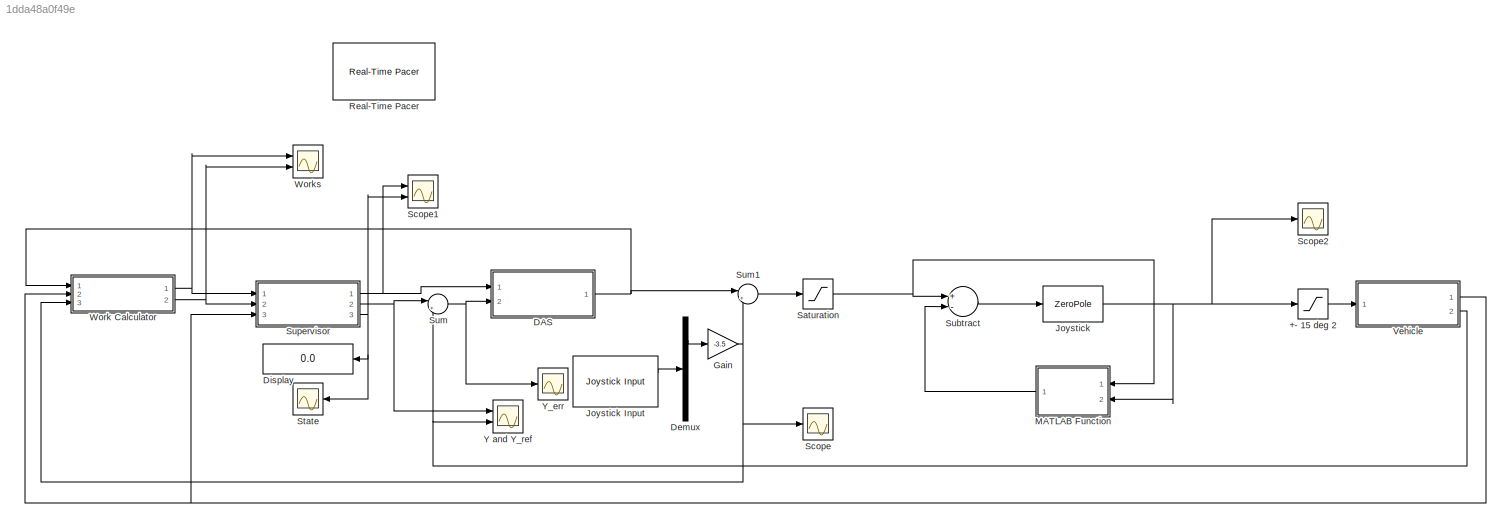
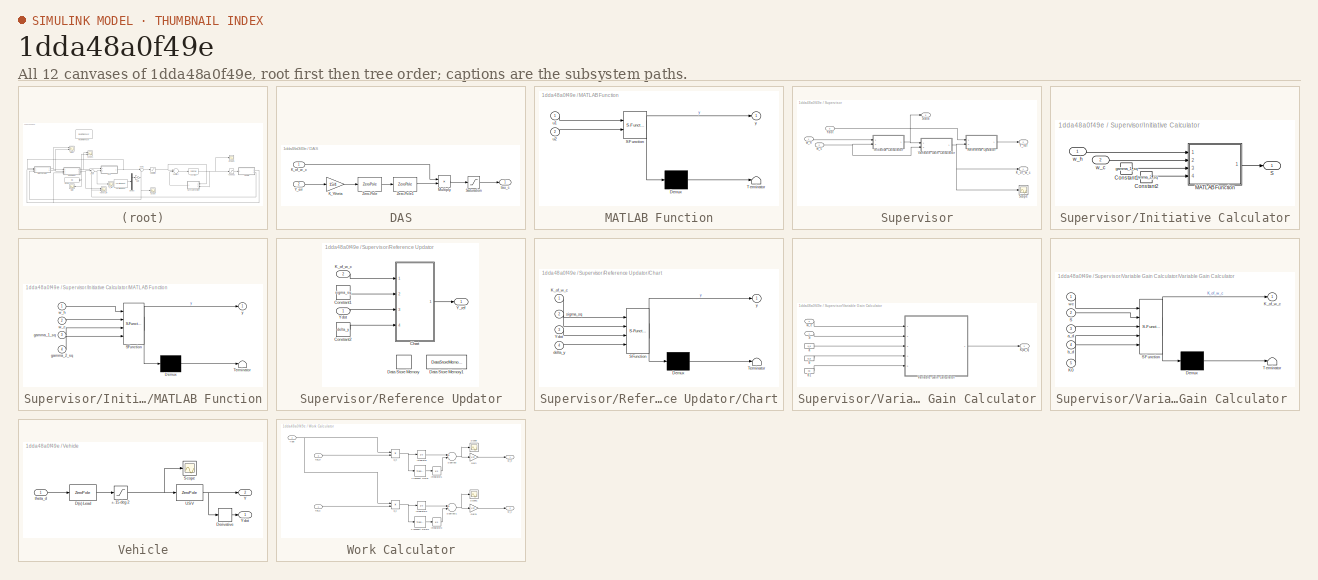
[diagram: thumbnail index - all 12 canvases of the model, root first then tree order]
MODEL slx_1dda48a0f49e
KIND model
CONFIG AbsTol = auto
CONFIG EnableMultiTasking = off
CONFIG FixedStep = auto
CONFIG InitFcn = RLDesignJoystick;\nY_ref=0;\nlast_switch_time=0;
CONFIG MaxStep = auto
CONFIG MinStep = auto
CONFIG RelTol = 1e-3
CONFIG SampleTimeConstraint = Unconstrained
CONFIG Solver = VariableStepAuto
CONFIG SolverName = VariableStepAuto
CONFIG StartTime = 0.0
CONFIG StopTime = 200
BLOCK [Saturate] +- 15 deg 2
  InputPortMap = u0
  LowerLimit = -pi/6
  Ports = [1, 1]
  UpperLimit = pi/6
BLOCK [SubSystem] DAS
  Ports = [2, 1]
  RequestExecContextInheritance = off
BLOCK [Gain] DAS/K_Ytheta
  Gain = 15/4
  OutDataTypeStr = Inherit: Inherit via internal rule
  ParamDataTypeStr = Inherit: Inherit via internal rule
  SaturateOnIntegerOverflow = off
BLOCK [Inport] DAS/K_of_w_c 
  IconDisplay = Port number
BLOCK [Product] DAS/Multiply
  InputSameDT = off
  OutDataTypeStr = Inherit: Inherit via internal rule
  Ports = [2, 1]
  RndMeth = Floor
  SaturateOnIntegerOverflow = off
BLOCK [Saturate] DAS/Saturation
  InputPortMap = u0
  LowerLimit = -3.5
  Ports = [1, 1]
  UpperLimit = 3.5
BLOCK [Inport] DAS/Y_err
  IconDisplay = Port number
  Port = 2
BLOCK [ZeroPole] DAS/Zero-Pole
  Gain = [K0]
  Poles = [-a]
  Zeros = [-b]
BLOCK [ZeroPole] DAS/Zero-Pole1
  Gain = [K1]
  Poles = [-a1]
  Zeros = [-b1]
BLOCK [Outport] DAS/tau_c
  IconDisplay = Port number
BLOCK [Demux] Demux
  DisplayOption = bar
  Outputs = 8
  Ports = [1, 8]
BLOCK [Display] Display
  Decimation = 1
  Ports = [1]
BLOCK [Gain] Gain
  Gain = -3.5
  OutDataTypeStr = Inherit: Inherit via internal rule
  ParamDataTypeStr = Inherit: Inherit via internal rule
  SaturateOnIntegerOverflow = off
BLOCK [ZeroPole] Joystick
  Gain = [I]
  Poles = [0 -bb/I]
  Zeros = []
BLOCK [Reference] Joystick Input  REF=vrlib/Joystick Input
  Ports = [0, 2]
  SourceBlock = vrlib/Joystick Input
  SourceProductBaseCode = VR
  SourceProductName = Simulink 3D Animation
  SourceType = Joystick Input
BLOCK [SubSystem] MATLAB Function
  ErrorFcn = Stateflow.Translate.translate
  PermitHierarchicalResolution = ExplicitOnly
  Ports = [2, 1]
  RequestExecContextInheritance = off
  SFBlockType = MATLAB Function
  TreatAsAtomicUnit = on
BLOCK [Demux] MATLAB Function/ Demux 
  Outputs = 1
  Ports = [1, 1]
BLOCK [S-Function] MATLAB Function/ SFunction 
  EnableBusSupport = on
  FunctionName = sf_sfun
  PortCounts = [2 2]
  Ports = [2, 2]
  SFcnIsStateOwnerBlock = off
  SFunctionDeploymentMode = off
  Tag = Stateflow S-Function sharedControlModelBased 4
BLOCK [Terminator] MATLAB Function/ Terminator 
BLOCK [Inport] MATLAB Function/u1
  IconDisplay = Port number
BLOCK [Inport] MATLAB Function/u2
  IconDisplay = Port number
  Port = 2
BLOCK [Outport] MATLAB Function/y
  IconDisplay = Port number
BLOCK [Reference] Real-Time Pacer  REF=realtime_pacer_lib/Real-Time Pacer
  Ports = []
  SourceBlock = realtime_pacer_lib/Real-Time Pacer
  SourceType = RealTime_Pacer
BLOCK [Saturate] Saturation
  InputPortMap = u0
  LowerLimit = -3.5
  Ports = [1, 1]
  UpperLimit = 3.5
BLOCK [Scope] Scope
  Floating = off
  NumInputPorts = 1
  Ports = [1]
  ScopeSpecificationString = Simulink.scopes.TimeScopeBlockCfg('CurrentConfiguration', extmgr.ConfigurationSet(extmgr.Configuration('Core','General UI',true),extmgr.Configuration('Core','Source UI',true),extmgr.Configuration('Sources','WiredSimulink',true,'DataLoggingVariableName','ScopeData1'),extmgr.Configuration('Visuals','Time Domain',true,'SerializedDisplays',{struct('MinYLimReal','-3.32862','MaxYLimReal','0.36985','YLab...<+1417ch>
BLOCK [Scope] Scope1
  Floating = off
  NumInputPorts = 2
  Ports = [2]
  ScopeSpecificationString = Simulink.scopes.TimeScopeBlockCfg('CurrentConfiguration', extmgr.ConfigurationSet(extmgr.Configuration('Core','General UI',true),extmgr.Configuration('Core','Source UI',true),extmgr.Configuration('Sources','WiredSimulink',true,'DataLoggingVariableName','ScopeData1'),extmgr.Configuration('Visuals','Time Domain',true,'SerializedDisplays',{struct('MinYLimReal','-0.74913','MaxYLimReal','6.7499','YLabe...<+1458ch>
BLOCK [Scope] Scope2
  Floating = off
  NumInputPorts = 1
  Ports = [1]
  ScopeSpecificationString = Simulink.scopes.TimeScopeBlockCfg('CurrentConfiguration', extmgr.ConfigurationSet(extmgr.Configuration('Core','General UI',true),extmgr.Configuration('Core','Source UI',true),extmgr.Configuration('Sources','WiredSimulink',true,'DataLoggingVariableName','ScopeData3'),extmgr.Configuration('Visuals','Time Domain',true,'SerializedDisplays',{struct('MinYLimReal','-6.58632','MaxYLimReal','8.7266','YLabe...<+1415ch>
BLOCK [Scope] State
  Floating = off
  NumInputPorts = 1
  Ports = [1]
  ScopeSpecificationString = Simulink.scopes.TimeScopeBlockCfg('CurrentConfiguration', extmgr.ConfigurationSet(extmgr.Configuration('Core','General UI',true),extmgr.Configuration('Core','Source UI',true),extmgr.Configuration('Sources','WiredSimulink',true,'DataLoggingVariableName','ScopeData2'),extmgr.Configuration('Visuals','Time Domain',true,'SerializedDisplays',{struct('MinYLimReal','0.875','MaxYLimReal','2.125','YLabelRea...<+1382ch>
BLOCK [Sum] Subtract
  InputSameDT = off
  Inputs = +-
  OutDataTypeStr = Inherit: Inherit via internal rule
  Ports = [2, 1]
  SaturateOnIntegerOverflow = off
BLOCK [Sum] Sum
  IconShape = round
  InputSameDT = off
  Inputs = |+-
  OutDataTypeStr = Inherit: Inherit via internal rule
  Ports = [2, 1]
  SaturateOnIntegerOverflow = off
BLOCK [Sum] Sum1
  IconShape = round
  InputSameDT = off
  Inputs = |++
  OutDataTypeStr = Inherit: Inherit via internal rule
  Ports = [2, 1]
  SaturateOnIntegerOverflow = off
BLOCK [SubSystem] Supervisor
  Ports = [3, 3]
  RequestExecContextInheritance = off
BLOCK [SubSystem] Supervisor/Initiative Calculator
  Ports = [2, 1]
  RequestExecContextInheritance = off
BLOCK [Constant] Supervisor/Initiative Calculator/Constant1
  Value = gamma_1_sq
BLOCK [Constant] Supervisor/Initiative Calculator/Constant2
  Value = gamma_2_sq
BLOCK [SubSystem] Supervisor/Initiative Calculator/MATLAB Function
  ErrorFcn = Stateflow.Translate.translate
  PermitHierarchicalResolution = ExplicitOnly
  Ports = [4, 1]
  RequestExecContextInheritance = off
  SFBlockType = MATLAB Function
  TreatAsAtomicUnit = on
BLOCK [Demux] Supervisor/Initiative Calculator/MATLAB Function/ Demux 
  Outputs = 1
  Ports = [1, 1]
BLOCK [S-Function] Supervisor/Initiative Calculator/MATLAB Function/ SFunction 
  EnableBusSupport = on
  FunctionName = sf_sfun
  PortCounts = [4 2]
  Ports = [4, 2]
  SFcnIsStateOwnerBlock = off
  SFunctionDeploymentMode = off
  Tag = Stateflow S-Function sharedControlModelBased 2
BLOCK [Terminator] Supervisor/Initiative Calculator/MATLAB Function/ Terminator 
BLOCK [Inport] Supervisor/Initiative Calculator/MATLAB Function/gamma_1_sq
  IconDisplay = Port number
  Port = 3
BLOCK [Inport] Supervisor/Initiative Calculator/MATLAB Function/gamma_2_sq
  IconDisplay = Port number
  Port = 4
BLOCK [Inport] Supervisor/Initiative Calculator/MATLAB Function/w_c
  IconDisplay = Port number
  Port = 2
BLOCK [Inport] Supervisor/Initiative Calculator/MATLAB Function/w_h
  IconDisplay = Port number
BLOCK [Outport] Supervisor/Initiative Calculator/MATLAB Function/y
  IconDisplay = Port number
BLOCK [Outport] Supervisor/Initiative Calculator/S
  IconDisplay = Port number
BLOCK [Inport] Supervisor/Initiative Calculator/w_c 
  IconDisplay = Port number
  Port = 2
BLOCK [Inport] Supervisor/Initiative Calculator/w_h
  IconDisplay = Port number
BLOCK [Outport] Supervisor/K_of_w_c
  IconDisplay = Port number
BLOCK [SubSystem] Supervisor/Reference Updator
  Ports = [2, 1]
  RequestExecContextInheritance = off
BLOCK [SubSystem] Supervisor/Reference Updator/Chart
  ErrorFcn = Stateflow.Translate.translate
  PermitHierarchicalResolution = ExplicitOnly
  Ports = [4, 1]
  RequestExecContextInheritance = off
  SFBlockType = Chart
  TreatAsAtomicUnit = on
BLOCK [Demux] Supervisor/Reference Updator/Chart/ Demux 
  Outputs = 1
  Ports = [1, 1]
BLOCK [S-Function] Supervisor/Reference Updator/Chart/ SFunction 
  EnableBusSupport = on
  FunctionName = sf_sfun
  PortCounts = [4 2]
  Ports = [4, 2]
  SFcnIsStateOwnerBlock = off
  SFunctionDeploymentMode = off
  Tag = Stateflow S-Function sharedControlModelBased 1
BLOCK [Terminator] Supervisor/Reference Updator/Chart/ Terminator 
BLOCK [Inport] Supervisor/Reference Updator/Chart/K_of_w_c
  IconDisplay = Port number
BLOCK [Inport] Supervisor/Reference Updator/Chart/Ydot
  IconDisplay = Port number
  Port = 3
BLOCK [Inport] Supervisor/Reference Updator/Chart/delta_y
  IconDisplay = Port number
  Port = 4
BLOCK [Inport] Supervisor/Reference Updator/Chart/sigma_sq
  IconDisplay = Port number
  Port = 2
BLOCK [Outport] Supervisor/Reference Updator/Chart/y
  IconDisplay = Port number
BLOCK [Constant] Supervisor/Reference Updator/Constant1
  Value = sigma_sq
BLOCK [Constant] Supervisor/Reference Updator/Constant2
  Value = delta_y
BLOCK [DataStoreMemory] Supervisor/Reference Updator/Data Store Memory
  DataStoreName = Y_ref
  OutDataTypeStr = int16
  ReadBeforeWriteMsg = warning
  ShowAdditionalParam = off
  SignalType = real
  WriteAfterReadMsg = warning
  WriteAfterWriteMsg = warning
BLOCK [DataStoreMemory] Supervisor/Reference Updator/Data Store Memory1
  DataStoreName = last_switch_time
  OutDataTypeStr = double
  ReadBeforeWriteMsg = warning
  ShowAdditionalParam = off
  SignalType = real
  WriteAfterReadMsg = warning
  WriteAfterWriteMsg = warning
BLOCK [Inport] Supervisor/Reference Updator/K_of_w_c
  IconDisplay = Port number
  Port = 2
BLOCK [Outport] Supervisor/Reference Updator/Y_ref
  IconDisplay = Port number
BLOCK [Inport] Supervisor/Reference Updator/Ydot
  IconDisplay = Port number
BLOCK [Scope] Supervisor/Scope
  Floating = off
  NumInputPorts = 1
  Ports = [1]
  ScopeSpecificationString = Simulink.scopes.TimeScopeBlockCfg('CurrentConfiguration', extmgr.ConfigurationSet(extmgr.Configuration('Core','General UI',true),extmgr.Configuration('Core','Source UI',true),extmgr.Configuration('Sources','WiredSimulink',true,'DataLoggingVariableName','ScopeData1'),extmgr.Configuration('Visuals','Time Domain',true,'SerializedDisplays',{struct('MinYLimReal','-0.05029','MaxYLimReal','0.56114','YLab...<+1431ch>
BLOCK [Outport] Supervisor/State
  IconDisplay = Port number
  Port = 3
BLOCK [SubSystem] Supervisor/Variable Gain Calculator
  Ports = [2, 1]
  RequestExecContextInheritance = off
BLOCK [Outport] Supervisor/Variable Gain Calculator/K(w_c)
  IconDisplay = Port number
BLOCK [Inport] Supervisor/Variable Gain Calculator/S
  IconDisplay = Port number
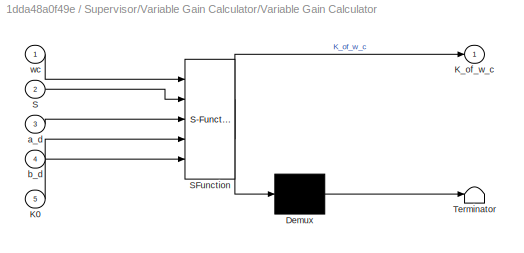
BLOCK [SubSystem] Supervisor/Variable Gain Calculator/Variable Gain Calculator 
  ErrorFcn = Stateflow.Translate.translate
  PermitHierarchicalResolution = ExplicitOnly
  Ports = [5, 1]
  RequestExecContextInheritance = off
  SFBlockType = MATLAB Function
  TreatAsAtomicUnit = on
BLOCK [Demux] Supervisor/Variable Gain Calculator/Variable Gain Calculator / Demux 
  Outputs = 1
  Ports = [1, 1]
BLOCK [S-Function] Supervisor/Variable Gain Calculator/Variable Gain Calculator / SFunction 
  EnableBusSupport = on
  FunctionName = sf_sfun
  PortCounts = [5 2]
  Ports = [5, 2]
  SFcnIsStateOwnerBlock = off
  SFunctionDeploymentMode = off
  Tag = Stateflow S-Function sharedControlModelBased 3
BLOCK [Terminator] Supervisor/Variable Gain Calculator/Variable Gain Calculator / Terminator 
BLOCK [Inport] Supervisor/Variable Gain Calculator/Variable Gain Calculator /K0
  IconDisplay = Port number
  Port = 5
BLOCK [Outport] Supervisor/Variable Gain Calculator/Variable Gain Calculator /K_of_w_c
  IconDisplay = Port number
BLOCK [Inport] Supervisor/Variable Gain Calculator/Variable Gain Calculator /S
  IconDisplay = Port number
  Port = 2
BLOCK [Inport] Supervisor/Variable Gain Calculator/Variable Gain Calculator /a_d
  IconDisplay = Port number
  Port = 3
BLOCK [Inport] Supervisor/Variable Gain Calculator/Variable Gain Calculator /b_d
  IconDisplay = Port number
  Port = 4
BLOCK [Inport] Supervisor/Variable Gain Calculator/Variable Gain Calculator /wc
  IconDisplay = Port number
BLOCK [Constant] Supervisor/Variable Gain Calculator/a
  Value = a_d
BLOCK [Constant] Supervisor/Variable Gain Calculator/b
  Value = b_d
BLOCK [Constant] Supervisor/Variable Gain Calculator/b1
  Value = K3
BLOCK [Inport] Supervisor/Variable Gain Calculator/w_c
  IconDisplay = Port number
  Port = 2
BLOCK [Outport] Supervisor/Y_ref
  IconDisplay = Port number
  Port = 2
BLOCK [Inport] Supervisor/Ydot
  IconDisplay = Port number
  Port = 3
BLOCK [Inport] Supervisor/w_c
  IconDisplay = Port number
  Port = 2
BLOCK [Inport] Supervisor/w_h
  IconDisplay = Port number
BLOCK [SubSystem] Vehicle
  Ports = [1, 2]
  RequestExecContextInheritance = off
BLOCK [Saturate] Vehicle/+- 15 deg 2
  InputPortMap = u0
  LowerLimit = -pi/6
  Ports = [1, 1]
  UpperLimit = pi/6
BLOCK [ZeroPole] Vehicle/D(s) Lead
  Gain = [K2]
  Poles = [-a2]
  Zeros = [-b2]
BLOCK [Derivative] Vehicle/Derivative
BLOCK [Scope] Vehicle/Scope
  Floating = off
  NumInputPorts = 1
  Ports = [1]
  ScopeSpecificationString = Simulink.scopes.TimeScopeBlockCfg('CurrentConfiguration', extmgr.ConfigurationSet(extmgr.Configuration('Core','General UI',true),extmgr.Configuration('Core','Source UI',true),extmgr.Configuration('Sources','WiredSimulink',true,'DataLoggingVariableName','ScopeData2'),extmgr.Configuration('Visuals','Time Domain',true,'SerializedDisplays',{struct('MinYLimReal','-0.6545','MaxYLimReal','0.6545','YLabel...<+1419ch>
BLOCK [ZeroPole] Vehicle/USV
  Gain = [2]
  Poles = [0 0 -3]
  Zeros = []
BLOCK [Outport] Vehicle/Y 
  IconDisplay = Port number
  Port = 2
BLOCK [Outport] Vehicle/Ydot
  IconDisplay = Port number
BLOCK [Inport] Vehicle/theta_d
  IconDisplay = Port number
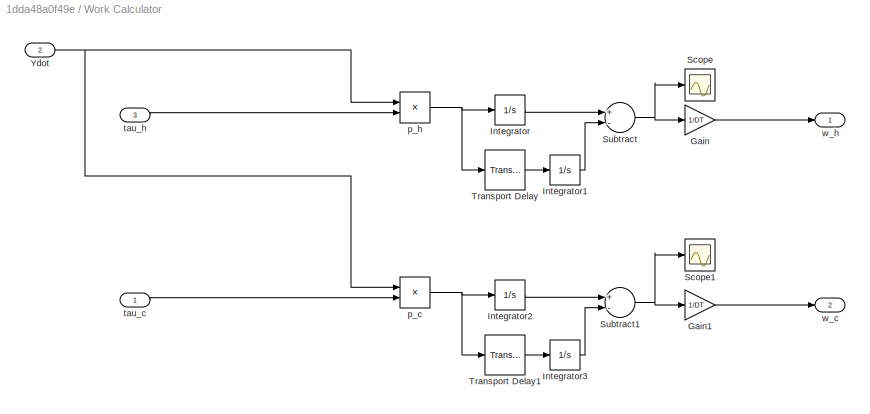
BLOCK [SubSystem] Work Calculator
  Ports = [3, 2]
  RequestExecContextInheritance = off
BLOCK [Gain] Work Calculator/Gain
  Gain = 1/DT
  OutDataTypeStr = Inherit: Inherit via internal rule
  ParamDataTypeStr = Inherit: Inherit via internal rule
  SaturateOnIntegerOverflow = off
BLOCK [Gain] Work Calculator/Gain1
  Gain = 1/DT
  OutDataTypeStr = Inherit: Inherit via internal rule
  ParamDataTypeStr = Inherit: Inherit via internal rule
  SaturateOnIntegerOverflow = off
BLOCK [Integrator] Work Calculator/Integrator
  Ports = [1, 1]
BLOCK [Integrator] Work Calculator/Integrator1
  Ports = [1, 1]
BLOCK [Integrator] Work Calculator/Integrator2
  Ports = [1, 1]
BLOCK [Integrator] Work Calculator/Integrator3
  Ports = [1, 1]
BLOCK [Scope] Work Calculator/Scope
  Floating = off
  NumInputPorts = 1
  Ports = [1]
  ScopeSpecificationString = Simulink.scopes.TimeScopeBlockCfg('CurrentConfiguration', extmgr.ConfigurationSet(extmgr.Configuration('Core','General UI',true),extmgr.Configuration('Core','Source UI',true),extmgr.Configuration('Sources','WiredSimulink',true,'DataLoggingVariableName','ScopeData2'),extmgr.Configuration('Visuals','Time Domain',true,'SerializedDisplays',{struct('MinYLimReal','-1.00000','MaxYLimReal','1.00000','YLab...<+1395ch>
BLOCK [Scope] Work Calculator/Scope1
  Floating = off
  NumInputPorts = 1
  Ports = [1]
  ScopeSpecificationString = Simulink.scopes.TimeScopeBlockCfg('CurrentConfiguration', extmgr.ConfigurationSet(extmgr.Configuration('Core','General UI',true),extmgr.Configuration('Core','Source UI',true),extmgr.Configuration('Sources','WiredSimulink',true,'DataLoggingVariableName','ScopeData3'),extmgr.Configuration('Visuals','Time Domain',true,'SerializedDisplays',{struct('MinYLimReal','-0.07558','MaxYLimReal','0.0084','YLabe...<+1396ch>
BLOCK [Sum] Work Calculator/Subtract
  InputSameDT = off
  Inputs = +-
  OutDataTypeStr = Inherit: Inherit via internal rule
  Ports = [2, 1]
  SaturateOnIntegerOverflow = off
BLOCK [Sum] Work Calculator/Subtract1
  InputSameDT = off
  Inputs = +-
  OutDataTypeStr = Inherit: Inherit via internal rule
  Ports = [2, 1]
  SaturateOnIntegerOverflow = off
BLOCK [TransportDelay] Work Calculator/Transport Delay
  DelayTime = DT
  Ports = [1, 1]
BLOCK [TransportDelay] Work Calculator/Transport Delay1
  DelayTime = DT
  Ports = [1, 1]
BLOCK [Inport] Work Calculator/Ydot
  IconDisplay = Port number
  Port = 2
BLOCK [Product] Work Calculator/p_c
  InputSameDT = off
  OutDataTypeStr = Inherit: Inherit via internal rule
  Ports = [2, 1]
  RndMeth = Floor
  SaturateOnIntegerOverflow = off
BLOCK [Product] Work Calculator/p_h
  InputSameDT = off
  OutDataTypeStr = Inherit: Inherit via internal rule
  Ports = [2, 1]
  RndMeth = Floor
  SaturateOnIntegerOverflow = off
BLOCK [Inport] Work Calculator/tau_c
  IconDisplay = Port number
BLOCK [Inport] Work Calculator/tau_h
  IconDisplay = Port number
  Port = 3
BLOCK [Outport] Work Calculator/w_c
  IconDisplay = Port number
  Port = 2
BLOCK [Outport] Work Calculator/w_h
  IconDisplay = Port number
BLOCK [Scope] Works
  Floating = off
  NumInputPorts = 2
  Ports = [2]
  ScopeSpecificationString = Simulink.scopes.TimeScopeBlockCfg('CurrentConfiguration', extmgr.ConfigurationSet(extmgr.Configuration('Core','General UI',true),extmgr.Configuration('Core','Source UI',true),extmgr.Configuration('Sources','WiredSimulink',true,'DataLoggingVariableName','ScopeData3'),extmgr.Configuration('Visuals','Time Domain',true,'SerializedDisplays',{struct('MinYLimReal','-0.08033','MaxYLimReal','0.03879','YLab...<+1385ch>
BLOCK [Scope] Y and Y_ref
  Floating = off
  NumInputPorts = 2
  Ports = [2]
  ScopeSpecificationString = Simulink.scopes.TimeScopeBlockCfg('CurrentConfiguration', extmgr.ConfigurationSet(extmgr.Configuration('Core','General UI',true),extmgr.Configuration('Core','Source UI',true),extmgr.Configuration('Sources','WiredSimulink',true,'DataLoggingVariableName','ScopeData4'),extmgr.Configuration('Visuals','Time Domain',true,'SerializedDisplays',{struct('MinYLimReal','-120.43905','MaxYLimReal','102.59176','...<+1512ch>
BLOCK [Scope] Y_err
  Floating = off
  NumInputPorts = 1
  Ports = [1]
  ScopeSpecificationString = Simulink.scopes.TimeScopeBlockCfg('CurrentConfiguration', extmgr.ConfigurationSet(extmgr.Configuration('Core','General UI',true),extmgr.Configuration('Core','Source UI',true),extmgr.Configuration('Sources','WiredSimulink',true,'DataLoggingVariableName','ScopeData5'),extmgr.Configuration('Visuals','Time Domain',true,'SerializedDisplays',{struct('MinYLimReal','-12.89901','MaxYLimReal','75.44183','YL...<+1392ch>
LINE +- 15 deg 2:1 -> Vehicle:1
LINE DAS/K_Ytheta:1 -> DAS/Zero-Pole:1
LINE DAS/K_of_w_c :1 -> DAS/Multiply:1
LINE DAS/Multiply:1 -> DAS/Saturation:1
LINE DAS/Saturation:1 -> DAS/tau_c:1
LINE DAS/Y_err:1 -> DAS/K_Ytheta:1
LINE DAS/Zero-Pole1:1 -> DAS/Multiply:2
LINE DAS/Zero-Pole:1 -> DAS/Zero-Pole1:1
NET DAS:1 -> Sum1:1, Work Calculator:1
LINE Demux:2 -> Gain:1
NET Gain:1 -> Scope:1, Sum1:2, Work Calculator:3
LINE Joystick Input:1 -> Demux:1
NET Joystick:1 -> +- 15 deg 2:1, MATLAB Function:2, Scope2:1
LINE MATLAB Function:1 -> Subtract:2
NET Saturation:1 -> MATLAB Function:1, Subtract:1
LINE Subtract:1 -> Joystick:1
LINE Sum1:1 -> Saturation:1
NET Sum:1 -> DAS:2, Y_err:1
LINE Supervisor/Initiative Calculator/Constant1:1 -> Supervisor/Initiative Calculator/MATLAB Function:3
LINE Supervisor/Initiative Calculator/Constant2:1 -> Supervisor/Initiative Calculator/MATLAB Function:4
LINE Supervisor/Initiative Calculator/MATLAB Function:1 -> Supervisor/Initiative Calculator/S:1
LINE Supervisor/Initiative Calculator/w_c :1 -> Supervisor/Initiative Calculator/MATLAB Function:2
LINE Supervisor/Initiative Calculator/w_h:1 -> Supervisor/Initiative Calculator/MATLAB Function:1
NET Supervisor/Initiative Calculator:1 -> Supervisor/State:1, Supervisor/Variable Gain Calculator:1
LINE Supervisor/Reference Updator/Chart:1 -> Supervisor/Reference Updator/Y_ref:1
LINE Supervisor/Reference Updator/Constant1:1 -> Supervisor/Reference Updator/Chart:2
LINE Supervisor/Reference Updator/Constant2:1 -> Supervisor/Reference Updator/Chart:4
LINE Supervisor/Reference Updator/K_of_w_c:1 -> Supervisor/Reference Updator/Chart:1
LINE Supervisor/Reference Updator/Ydot:1 -> Supervisor/Reference Updator/Chart:3
LINE Supervisor/Reference Updator:1 -> Supervisor/Y_ref:1
LINE Supervisor/Variable Gain Calculator/S:1 -> Supervisor/Variable Gain Calculator/Variable Gain Calculator :2
LINE Supervisor/Variable Gain Calculator/Variable Gain Calculator :1 -> Supervisor/Variable Gain Calculator/K(w_c):1
LINE Supervisor/Variable Gain Calculator/a:1 -> Supervisor/Variable Gain Calculator/Variable Gain Calculator :3
LINE Supervisor/Variable Gain Calculator/b1:1 -> Supervisor/Variable Gain Calculator/Variable Gain Calculator :5
LINE Supervisor/Variable Gain Calculator/b:1 -> Supervisor/Variable Gain Calculator/Variable Gain Calculator :4
LINE Supervisor/Variable Gain Calculator/w_c:1 -> Supervisor/Variable Gain Calculator/Variable Gain Calculator :1
NET Supervisor/Variable Gain Calculator:1 -> Supervisor/K_of_w_c:1, Supervisor/Reference Updator:2, Supervisor/Scope:1
LINE Supervisor/Ydot:1 -> Supervisor/Reference Updator:1
NET Supervisor/w_c:1 -> Supervisor/Initiative Calculator:2, Supervisor/Variable Gain Calculator:2
LINE Supervisor/w_h:1 -> Supervisor/Initiative Calculator:1
NET Supervisor:1 -> DAS:1, Scope1:1
NET Supervisor:2 -> Sum:1, Y and Y_ref:1
NET Supervisor:3 -> Display:1, Scope1:2, State:1
NET Vehicle/+- 15 deg 2:1 -> Vehicle/Scope:1, Vehicle/USV:1
LINE Vehicle/D(s) Lead:1 -> Vehicle/+- 15 deg 2:1
LINE Vehicle/Derivative:1 -> Vehicle/Ydot:1
NET Vehicle/USV:1 -> Vehicle/Derivative:1, Vehicle/Y :1
LINE Vehicle/theta_d:1 -> Vehicle/D(s) Lead:1
NET Vehicle:1 -> Supervisor:3, Work Calculator:2
NET Vehicle:2 -> Sum:2, Y and Y_ref:2
LINE Work Calculator/Gain1:1 -> Work Calculator/w_c:1
LINE Work Calculator/Gain:1 -> Work Calculator/w_h:1
LINE Work Calculator/Integrator1:1 -> Work Calculator/Subtract:2
LINE Work Calculator/Integrator2:1 -> Work Calculator/Subtract1:1
LINE Work Calculator/Integrator3:1 -> Work Calculator/Subtract1:2
LINE Work Calculator/Integrator:1 -> Work Calculator/Subtract:1
NET Work Calculator/Subtract1:1 -> Work Calculator/Gain1:1, Work Calculator/Scope1:1
NET Work Calculator/Subtract:1 -> Work Calculator/Gain:1, Work Calculator/Scope:1
LINE Work Calculator/Transport Delay1:1 -> Work Calculator/Integrator3:1
LINE Work Calculator/Transport Delay:1 -> Work Calculator/Integrator1:1
NET Work Calculator/Ydot:1 -> Work Calculator/p_c:1, Work Calculator/p_h:1
NET Work Calculator/p_c:1 -> Work Calculator/Integrator2:1, Work Calculator/Transport Delay1:1
NET Work Calculator/p_h:1 -> Work Calculator/Integrator:1, Work Calculator/Transport Delay:1
LINE Work Calculator/tau_c:1 -> Work Calculator/p_c:2
LINE Work Calculator/tau_h:1 -> Work Calculator/p_h:2
NET Work Calculator:1 -> Supervisor:1, Works:1
NET Work Calculator:2 -> Supervisor:2, Works:2
note: NET lines group one-source signal fan-out (src -> all destinations, sorted); 1:1 wires keep LINE
CHART Supervisor/Reference Updator/Chart states=8 transitions=9
  STATE_LABEL 'This system will check if there should be a lane changed\nbased on K(w_c) vs siqma^2.  If a lane change is required,\ncheck to see if allowed based on time since last lane change'
  STATE_LABEL '<!DOCTYPE HTML PUBLIC "-//W3C//DTD HTML 4.0//EN" "http://www.w3.org/TR/REC-html40/strict.dtd">\n<html><head><meta name="qrichtext" content="1" /><style type="text/css">\np, li { white-space: pre-wrap; }\n</style></head><body style=" font-family:\'Helvetica\'; font-size:12px; font-weight:400; font-style:normal;">\n<p style=" margin-top:0px; margin-bottom:0px; margin-left:0px; margin-right:0px; -qt-block-...<+1198ch>'
  STATE_LABEL 'add\nentry:Y_ref=Y_ref+delta_y;\ny=Y_ref;\nset_last_switch_time;'
  STATE_LABEL 'checkForChange\nentry: change_flag=time_check(10);'
  STATE_LABEL 'subtract\nentry:Y_ref=Y_ref-delta_y;\ny=Y_ref;\nset_last_switch_time;'
  STATE_LABEL 'T_min=5'
  STATE_LABEL 'change=time_check(t_min)'
  STATE_LABEL "SCRIPT:\nfunction change=time_check(t_min)\nglobal last_switch_time\ncoder.extrinsic('get_param');\ntemp=0;\ntemp=get_param('sharedControlModelBased','SimulationTime');\nchange=(temp-last_switch_time)>t_min;"
  STATE_LABEL 'set_last_switch_time'
  STATE_LABEL "SCRIPT:\nfunction set_last_switch_time\nglobal last_switch_time\ncoder.extrinsic('get_param')\nlast_switch_time=get_param('sharedControlModelBased','SimulationTime');"
CHART Supervisor/Initiative Calculator/MATLAB Function states=1 transitions=1
  STATE_LABEL 'eML_blk_kernel()'
  STATE_LABEL "SCRIPT:\nfunction y = fcn(w_h, w_c, gamma_1_sq, gamma_2_sq)\n\nif(w_h >= -gamma_1_sq && w_c >= -gamma_2_sq)\n    S=1;\nelseif(w_h >= -gamma_1_sq && w_c < -gamma_2_sq)\n    S=2;\nelseif(w_h < -gamma_1_sq && w_c >= -gamma_2_sq)\n    S=3;\nelseif(w_h < -gamma_1_sq && w_c < -gamma_2_sq)\n    S=4;\nelse\n    error('bad state assignment');\nend\ny = S;\n"
CHART Supervisor/Variable Gain Calculator/Variable Gain Calculator
 states=1 transitions=1
  STATE_LABEL 'eML_blk_kernel()'
  STATE_LABEL 'SCRIPT:\nfunction K_of_w_c = fcn(wc, S, a_d, b_d, K0)\n\nif S == 2    \n    K_of_w_c = K0/(1 + exp(-a_d*wc + b_d));\nelse\n    K_of_w_c = K0;\nend\n\nreturn'
CHART MATLAB Function states=1 transitions=1
  STATE_LABEL 'eML_blk_kernel()'
  STATE_LABEL 'SCRIPT:\n%u1=input torque\n%u2=current position in radians\n\nfunction y = fcn(u1, u2)\n\nif((abs(u2)>(pi/6))&&((u1*u2)>0))\n    y=u1;\nelse\n    y=0;\nend'
